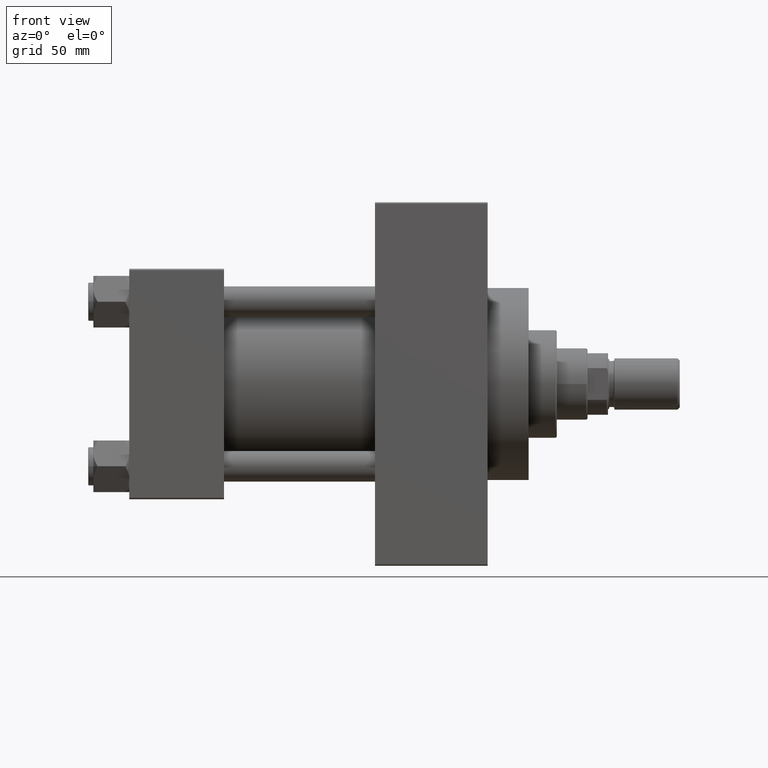
[diagram: clean part render]
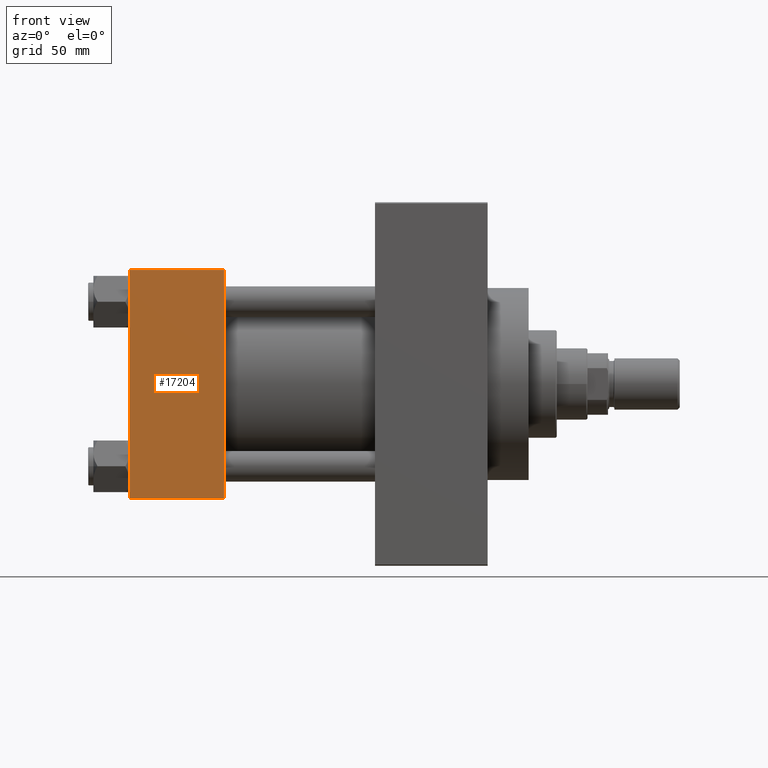
[diagram: same view with one face highlighted and labeled with its STEP entity id]
A machine part, front view. The second image highlights one B-rep face of the part: STEP entity #17204.
In plain terms, the highlighted planar face has unit normal (0, 1, 0).
Its self-contained STEP definition (entity closure, byte-faithful):
#4551 = VECTOR ( 'NONE', #10280, 1000.000000000000000 ) ;
#5957 = LINE ( 'NONE', #9815, #4551 ) ;
#6317 = EDGE_CURVE ( 'NONE', #39496, #23807, #21431, .T. ) ;
#6667 = ORIENTED_EDGE ( 'NONE', *, *, #9002, .T. ) ;
#7385 = LINE ( 'NONE', #21346, #41217 ) ;
#8043 = CARTESIAN_POINT ( 'NONE',  ( 37.00000000000000000, -45.00000000000000000, -44.49999999999995737 ) ) ;
#8932 = VECTOR ( 'NONE', #11571, 1000.000000000000000 ) ;
#9002 = EDGE_CURVE ( 'NONE', #24771, #39496, #7385, .T. ) ;
#9815 = CARTESIAN_POINT ( 'NONE',  ( 37.00000000000000000, -45.00000000000000000, -44.49999999999998579 ) ) ;
#10280 = DIRECTION ( 'NONE',  ( 1.000000000000000000, 0.000000000000000000, 0.000000000000000000 ) ) ;
#11571 = DIRECTION ( 'NONE',  ( 0.000000000000000000, 7.709882115452476934E-17, -1.000000000000000000 ) ) ;
#12375 = ORIENTED_EDGE ( 'NONE', *, *, #6317, .T. ) ;
#13561 = DIRECTION ( 'NONE',  ( -0.000000000000000000, 1.000000000000000000, 7.709882115452478166E-17 ) ) ;
#15075 = VECTOR ( 'NONE', #18836, 1000.000000000000000 ) ;
#17176 = ORIENTED_EDGE ( 'NONE', *, *, #47641, .T. ) ;
#17204 = ADVANCED_FACE ( 'NONE', ( #28478 ), #43199, .F. ) ;
#18836 = DIRECTION ( 'NONE',  ( 0.000000000000000000, 7.709882115452476934E-17, -1.000000000000000000 ) ) ;
#21346 = CARTESIAN_POINT ( 'NONE',  ( 37.00000000000000000, -45.00000000000000711, 44.49999999999997158 ) ) ;
#21431 = LINE ( 'NONE', #36162, #8932 ) ;
#22219 = CARTESIAN_POINT ( 'NONE',  ( 37.00000000000000000, -45.00000000000000711, 45.00000000000000000 ) ) ;
#22477 = ORIENTED_EDGE ( 'NONE', *, *, #37020, .F. ) ;
#23807 = VERTEX_POINT ( 'NONE', #37631 ) ;
#24771 = VERTEX_POINT ( 'NONE', #43334 ) ;
#28478 = FACE_OUTER_BOUND ( 'NONE', #46677, .T. ) ;
#29527 = DIRECTION ( 'NONE',  ( -1.000000000000000000, 0.000000000000000000, 0.000000000000000000 ) ) ;
#33681 = CARTESIAN_POINT ( 'NONE',  ( 0.000000000000000000, -45.00000000000000711, 44.49999999999997158 ) ) ;
#36162 = CARTESIAN_POINT ( 'NONE',  ( 0.000000000000000000, -45.00000000000000711, 45.00000000000000000 ) ) ;
#37020 = EDGE_CURVE ( 'NONE', #24771, #47278, #44414, .T. ) ;
#37631 = CARTESIAN_POINT ( 'NONE',  ( 0.000000000000000000, -45.00000000000000000, -44.49999999999995737 ) ) ;
#39496 = VERTEX_POINT ( 'NONE', #33681 ) ;
#41217 = VECTOR ( 'NONE', #29527, 1000.000000000000000 ) ;
#43199 = PLANE ( 'NONE',  #47648 ) ;
#43334 = CARTESIAN_POINT ( 'NONE',  ( 37.00000000000000000, -45.00000000000000711, 44.49999999999997158 ) ) ;
#43683 = DIRECTION ( 'NONE',  ( 0.000000000000000000, -7.709882115452478166E-17, 1.000000000000000000 ) ) ;
#44414 = LINE ( 'NONE', #22219, #15075 ) ;
#46677 = EDGE_LOOP ( 'NONE', ( #12375, #17176, #22477, #6667 ) ) ;
#47070 = CARTESIAN_POINT ( 'NONE',  ( 37.00000000000000000, -45.00000000000000711, 45.00000000000000000 ) ) ;
#47278 = VERTEX_POINT ( 'NONE', #8043 ) ;
#47641 = EDGE_CURVE ( 'NONE', #23807, #47278, #5957, .T. ) ;
#47648 = AXIS2_PLACEMENT_3D ( 'NONE', #47070, #13561, #43683 ) ;